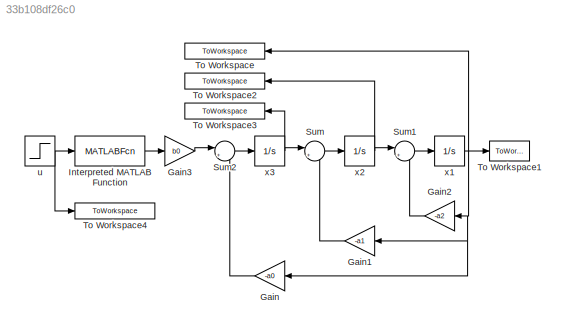
MODEL slx_33b108df26c0
KIND model
CONFIG AbsTol = auto
CONFIG EnableMultiTasking = off
CONFIG FixedStep = auto
CONFIG MaxStep = auto
CONFIG MinStep = auto
CONFIG RelTol = 1e-3
CONFIG SampleTimeConstraint = Unconstrained
CONFIG SolverName = VariableStepAuto
CONFIG StartTime = 0.0
CONFIG StopTime = 100
BLOCK [Gain] Gain
  Gain = -a0
  NameLocation = top
BLOCK [Gain] Gain1
  Gain = -a1
  NameLocation = top
BLOCK [Gain] Gain2
  Gain = -a2
  NameLocation = top
BLOCK [Gain] Gain3
  Gain = b0
BLOCK [MATLABFcn] Interpreted MATLAB Function
  MATLABFcn = alpha1*u+alpha2*u^2+alpha3*u^3+alpha4*u^4
BLOCK [Sum] Sum
  Inputs = |++
BLOCK [Sum] Sum1
  Inputs = |++
BLOCK [Sum] Sum2
  Inputs = |++
BLOCK [ToWorkspace] To Workspace
  FixptAsFi = on
  MaxDataPoints = inf
  NameLocation = top
  SampleTime = -1
  SaveFormat = Timeseries
  VariableName = x1t
BLOCK [ToWorkspace] To Workspace1
  FixptAsFi = on
  MaxDataPoints = inf
  SampleTime = -1
  SaveFormat = Timeseries
  VariableName = yt
BLOCK [ToWorkspace] To Workspace2
  FixptAsFi = on
  MaxDataPoints = inf
  NameLocation = top
  SampleTime = -1
  SaveFormat = Timeseries
  VariableName = x2t
BLOCK [ToWorkspace] To Workspace3
  FixptAsFi = on
  MaxDataPoints = inf
  NameLocation = top
  SampleTime = -1
  SaveFormat = Timeseries
  VariableName = x3t
BLOCK [ToWorkspace] To Workspace4
  FixptAsFi = on
  MaxDataPoints = inf
  SampleTime = -1
  SaveFormat = Timeseries
  VariableName = ut
BLOCK [Step] u
  After = u_step_sim
  SampleTime = 0
  Time = t_u_step_sim
BLOCK [Integrator] x1
  InitialCondition = X_0(1)
BLOCK [Integrator] x2
  InitialCondition = X_0(2)
BLOCK [Integrator] x3
  InitialCondition = X_0(3)
LINE Gain1:1 -> Sum:2
LINE Gain2:1 -> Sum1:2
LINE Gain3:1 -> Sum2:1
LINE Gain:1 -> Sum2:2
LINE Interpreted MATLAB Function:1 -> Gain3:1
LINE Sum1:1 -> x1:1
LINE Sum2:1 -> x3:1
LINE Sum:1 -> x2:1
NET u:1 -> Interpreted MATLAB Function:1, To Workspace4:1
NET x1:1 -> Gain1:1, Gain2:1, Gain:1, To Workspace1:1, To Workspace:1
NET x2:1 -> Sum1:1, To Workspace2:1
NET x3:1 -> Sum:1, To Workspace3:1
note: NET lines group one-source signal fan-out (src -> all destinations, sorted); 1:1 wires keep LINE
